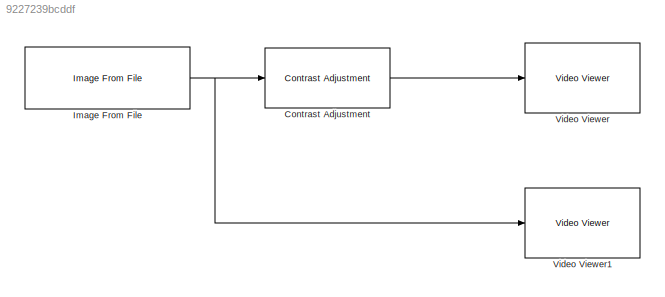
MODEL slx_9227239bcddf
KIND model
BLOCK [Reference] Contrast Adjustment  REF=visionanalysis/Contrast Adjustment
  LockScale = off
  Ports = [1, 1]
  SourceBlock = visionanalysis/Contrast Adjustment
  SourceType = Contrast Adjustment
  binNum = 256
  fracSaturate = [1 1]
  isBinNum = on
  methodInputRange = Range determined by saturating outlier pixels
  methodOutputRange = Full data type range
  overflowMode = off
  prod1FracLength = 16
  prod1Mode = Binary point scaling
  prod1WordLength = 32
  prod2FracLength = 16
  prod2Mode = Binary point scaling
  prod2WordLength = 32
  rangeIn = [0 255]
  rangeOut = [0 255]
  roundingMode = Floor
BLOCK [Reference] Image From File  REF=visionsources/Image From File
  FileName = Lena_256x256.bmp
  FractionLength = 15
  FractionLengthMode = User-defined
  ImageDataType = Inherit from input image
  OutPortLabels = R|G|B
  Ports = [0, 1]
  Signed = on
  SourceBlock = visionsources/Image From File
  SourceType = Image From File
  Tag = vipblks_nd
  Ts = inf
  WordLength = 16
  imagePorts = One multidimensional signal
  sdImageDataType = uint(8)
BLOCK [Reference] Video Viewer  REF=visionsinks/Video Viewer
  AxisZoom = on
  DefaultConfigurationName = vipscopes.VideoViewerScopeCfg
  FigPos = [496 722 410 337]
  OpenAtMdlStart = on
  Ports = [1]
  SourceBlock = visionsinks/Video Viewer
  SourceType = Video Viewer
  UserDataPersistent = on
  colormapValue = gray(256)
  imagePorts = One multidimensional signal
  inputType = Obsolete7b
  maxInputVal = 255
  minInputVal = 0
  specRange = off
  trueSizedOnce = off
  useColorMap = off
BLOCK [Reference] Video Viewer1  REF=visionsinks/Video Viewer
  AxisZoom = on
  DefaultConfigurationName = vipscopes.VideoViewerScopeCfg
  FigPos = [96 695 410 300]
  OpenAtMdlStart = on
  Ports = [1]
  SourceBlock = visionsinks/Video Viewer
  SourceType = Video Viewer
  UserDataPersistent = on
  colormapValue = gray(256)
  imagePorts = One multidimensional signal
  inputType = Obsolete7b
  maxInputVal = 255
  minInputVal = 0
  specRange = off
  trueSizedOnce = off
  useColorMap = off
LINE Contrast Adjustment:1 -> Video Viewer:1
NET Image From File:1 -> Contrast Adjustment:1, Video Viewer1:1
note: NET lines group one-source signal fan-out (src -> all destinations, sorted); 1:1 wires keep LINE
